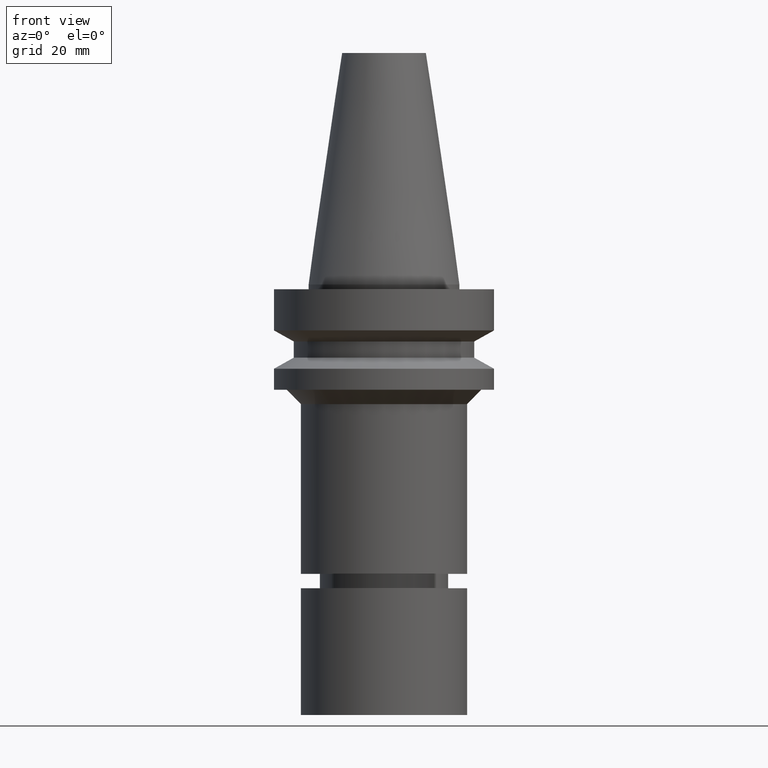
[diagram: clean part render]
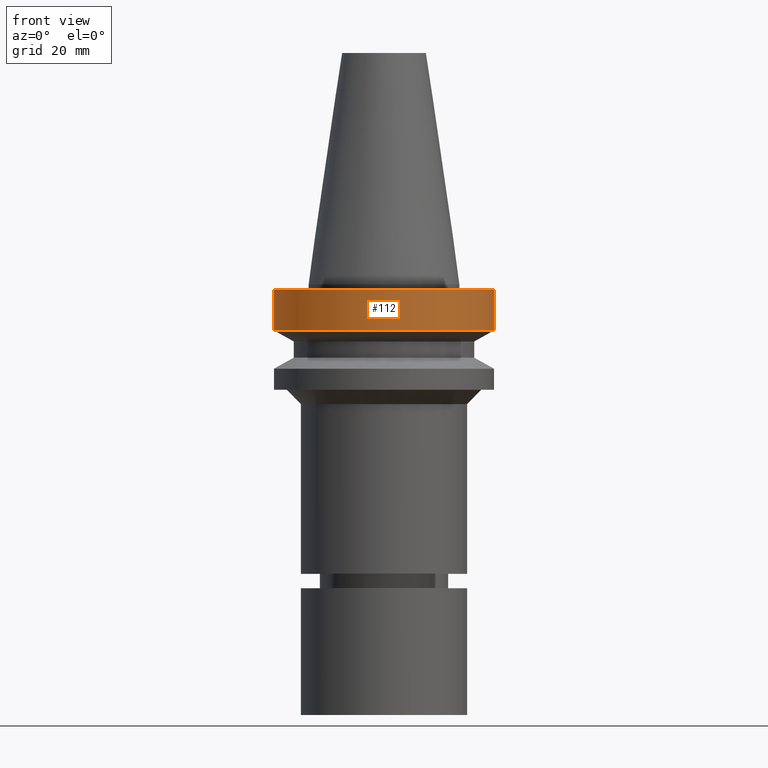
[diagram: same view with one face highlighted and labeled with its STEP entity id]
A machine part, front view. The second image highlights one B-rep face of the part: STEP entity #112.
In plain terms, the highlighted cylindrical surface (bore or boss wall) has radius 23 mm, axis along (0, 0, -1).
Its self-contained STEP definition (entity closure, byte-faithful):
#112=ADVANCED_FACE('Unnamed[1]',(#257,#258),#259,.T.);
#144=EDGE_CURVE('Unnamed[1]',#308,#308,#309,.T.);
#180=EDGE_CURVE('Unnamed[1]',#362,#362,#363,.T.);
#257=FACE_BOUND('',#446,.T.);
#258=FACE_BOUND('',#447,.T.);
#259=CYLINDRICAL_SURFACE('',#448,23.0);
#308=VERTEX_POINT('',#510);
#309=CIRCLE('',#511,23.0);
#362=VERTEX_POINT('',#577);
#363=CIRCLE('',#578,23.0);
#446=EDGE_LOOP('',(#641));
#447=EDGE_LOOP('',(#642));
#448=AXIS2_PLACEMENT_3D('',#643,#644,#645);
#510=CARTESIAN_POINT('',(5.87830463590729E-016,23.0,-9.59999999999999));
#511=AXIS2_PLACEMENT_3D('',#699,#700,#701);
#577=CARTESIAN_POINT('',(6.12323399573674E-017,23.0,-0.999999999999997));
#578=AXIS2_PLACEMENT_3D('',#758,#759,#760);
#641=ORIENTED_EDGE('',*,*,#144,.F.);
#642=ORIENTED_EDGE('',*,*,#180,.T.);
#643=CARTESIAN_POINT('',(3.24531401774048E-016,6.49062803548097E-016,-5.3));
#644=DIRECTION('',(6.12323399573677E-017,1.22464679914716E-016,-1.0));
#645=DIRECTION('',(-1.23259516440783E-032,1.0,1.22464679914716E-016));
#699=CARTESIAN_POINT('',(5.87830463590729E-016,1.17566092718146E-015,-9.59999999999999));
#700=DIRECTION('',(6.12323399573677E-017,1.22464679914716E-016,-1.0));
#701=DIRECTION('',(-1.23259516440783E-032,1.0,1.22464679914716E-016));
#758=CARTESIAN_POINT('',(6.12323399573677E-017,1.22464679914735E-016,-1.0));
#759=DIRECTION('',(6.12323399573677E-017,1.22464679914716E-016,-1.0));
#760=DIRECTION('',(-1.23259516440783E-032,1.0,1.22464679914716E-016));